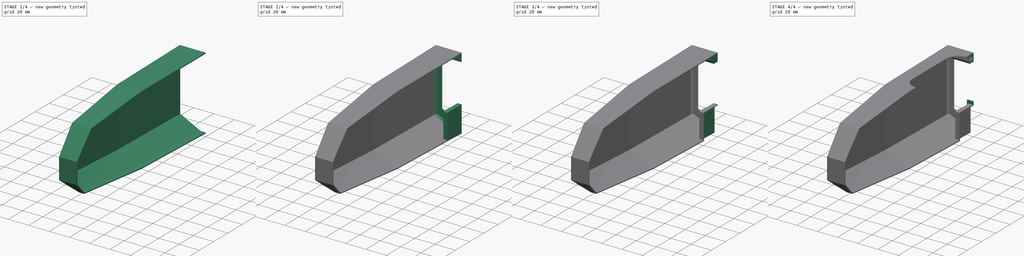
[diagram: build sequence overview — one tinted view per stage of 4, left to right]
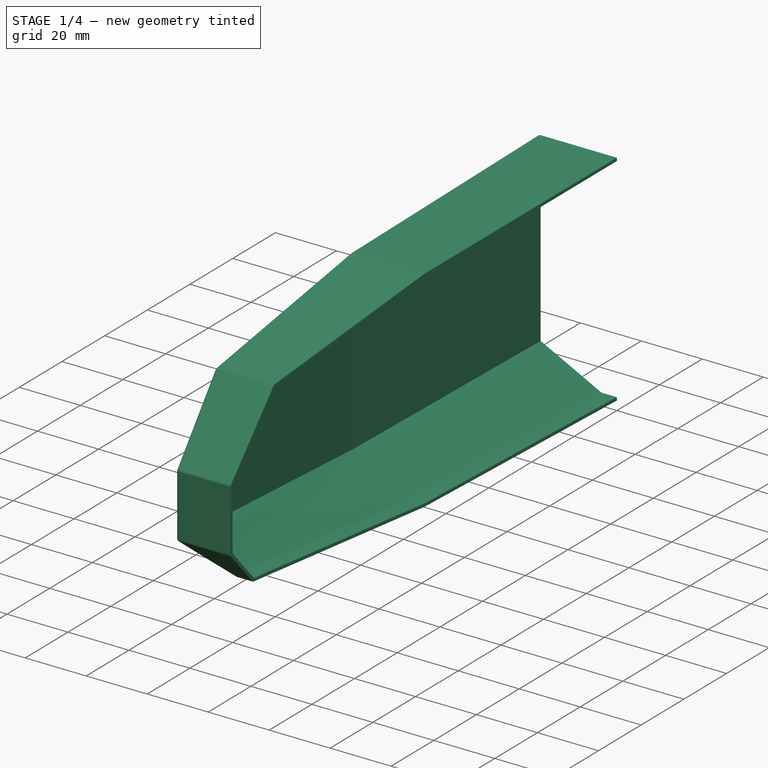
[diagram: stage 1 of 4 — iso view after this stage's code; geometry added in this stage tinted green]
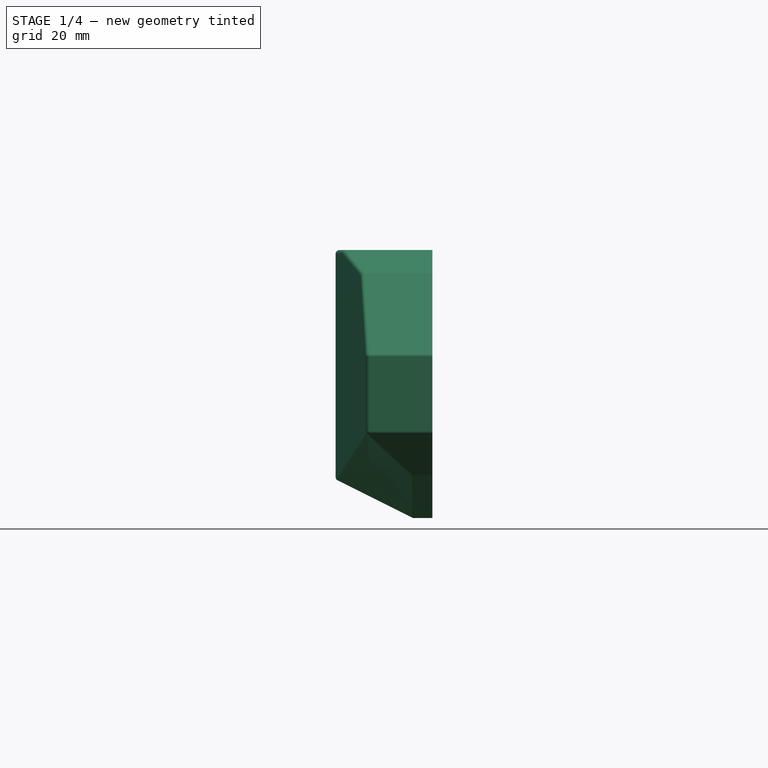
[diagram: stage 1 of 4 — front view after this stage's code; geometry added in this stage tinted green]
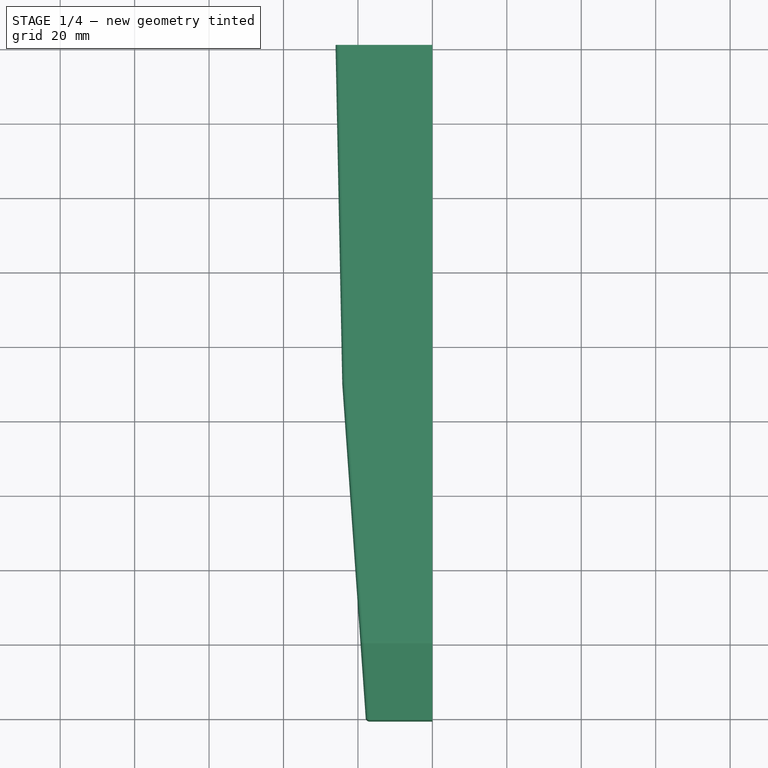
[diagram: stage 1 of 4 — top view after this stage's code; geometry added in this stage tinted green]
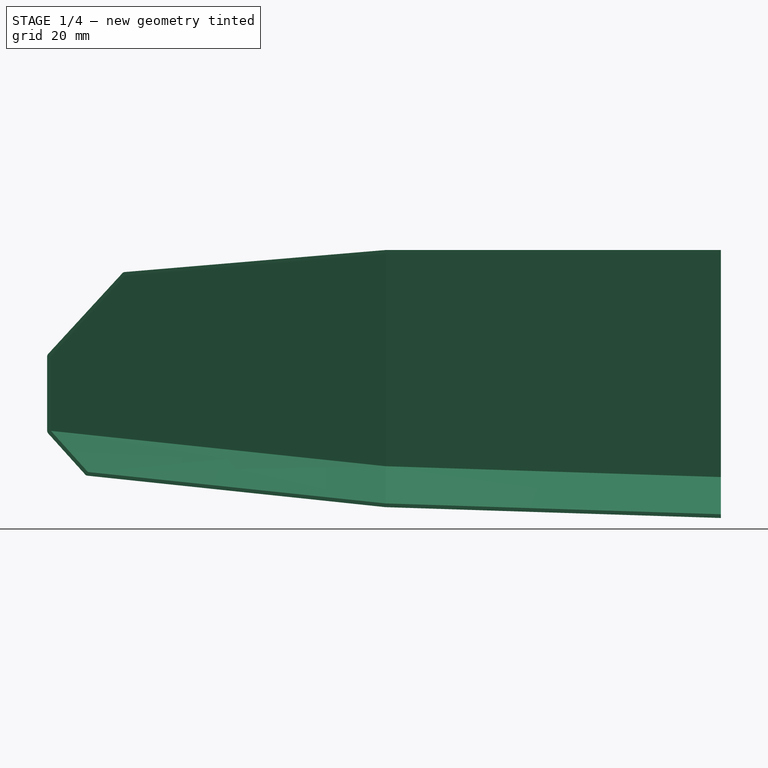
[diagram: stage 1 of 4 — right view after this stage's code; geometry added in this stage tinted green]
FCSTD DOCUMENT  (FreeCAD 0.18R4 (GitTag))
Label: o-cat
License: All rights reserved
LicenseURL: http://en.wikipedia.org/wiki/All_rights_reserved
objects: Sketcher::SketchObject×8, PartDesign::Pocket×4, PartDesign::Pad×4, Part::Feature×1, PartDesign::FeatureBase×1, PartDesign::Thickness×1, PartDesign::Chamfer×1, PartDesign::Fillet×1, PartDesign::Body×1
note: 30 computed .brp shape members not serialized (recipe doc carries the construction recipe); baked Part::Feature solids carry a one-line shape summary decoded from their .brp

FEATURE [Part::Feature] Part__Feature  label="Pocket001"
  shape: bbox 50 x 180 x 70 mm, 16 faces (baked)
FEATURE [PartDesign::FeatureBase] BaseFeature
  BaseFeature = -> Part__Feature
FEATURE [Sketcher::SketchObject] Sketch
  MapMode = 5
  Placement = pos=(0,-1.02e-14,0) rot=(0,0.707107,0.707107;3.14159rad)
  Support = -> [BaseFeature]
  sketch-geometry (4):
    g0: LineSegment StartX=-89.6004 StartY=41.4914 StartZ=0 EndX=0 EndY=41.4914 EndZ=0
    g1: LineSegment StartX=0 StartY=41.4914 StartZ=0 EndX=0 EndY=-95.8875 EndZ=0
    g2: LineSegment StartX=0 StartY=-95.8875 StartZ=0 EndX=-89.6004 EndY=-95.8875 EndZ=0
    g3: LineSegment StartX=-89.6004 StartY=-95.8875 StartZ=0 EndX=-89.6004 EndY=41.4914 EndZ=0
  constraints (9):
    c: Coincident(g0,g1)
    c: Coincident(g1,g2)
    c: Coincident(g2,g3)
    c: Coincident(g3,g0)
    c: Horizontal(g0)
    c: Horizontal(g2)
    c: Vertical(g1)
    c: Vertical(g3)
    c: PointOnObject(g1,g-2)
FEATURE [PartDesign::Pocket] Pocket
  BaseFeature = -> BaseFeature
  Length = 5
  Length2 = 100
  Profile = -> Sketch
  Type = 1
FEATURE [PartDesign::Thickness] Thickness
  Base = -> Pocket [Face5,Face10]
  BaseFeature = -> Pocket
  Join = 0
  Mode = 0
  Value = 1
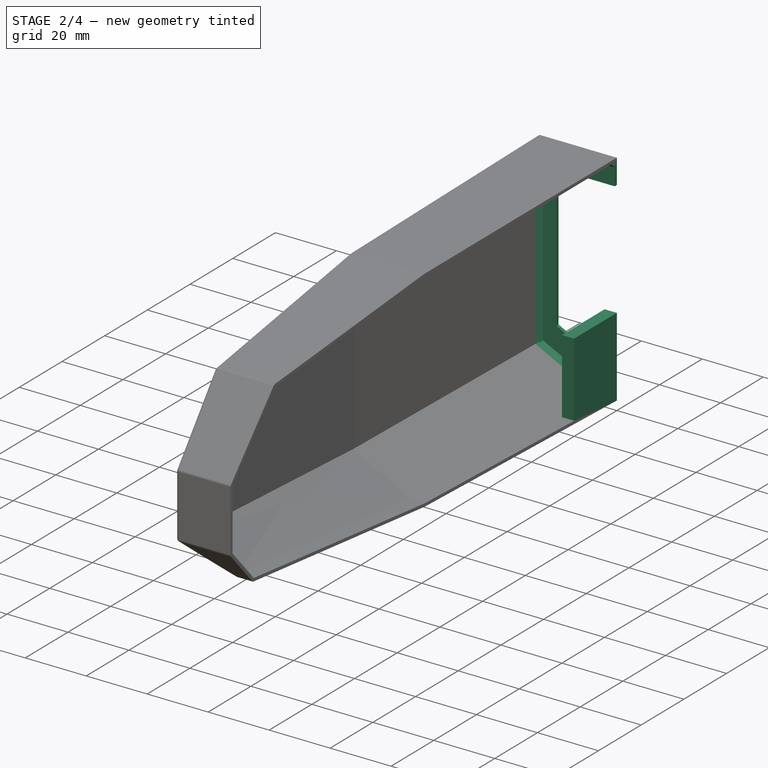
[diagram: stage 2 of 4 — iso view after this stage's code; geometry added in this stage tinted green]
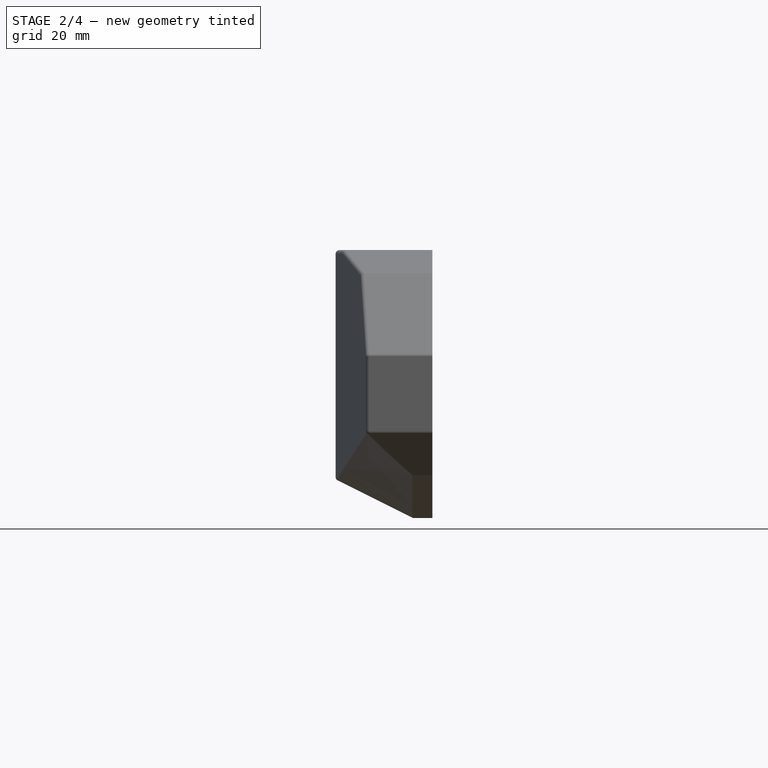
[diagram: stage 2 of 4 — front view after this stage's code; geometry added in this stage tinted green]
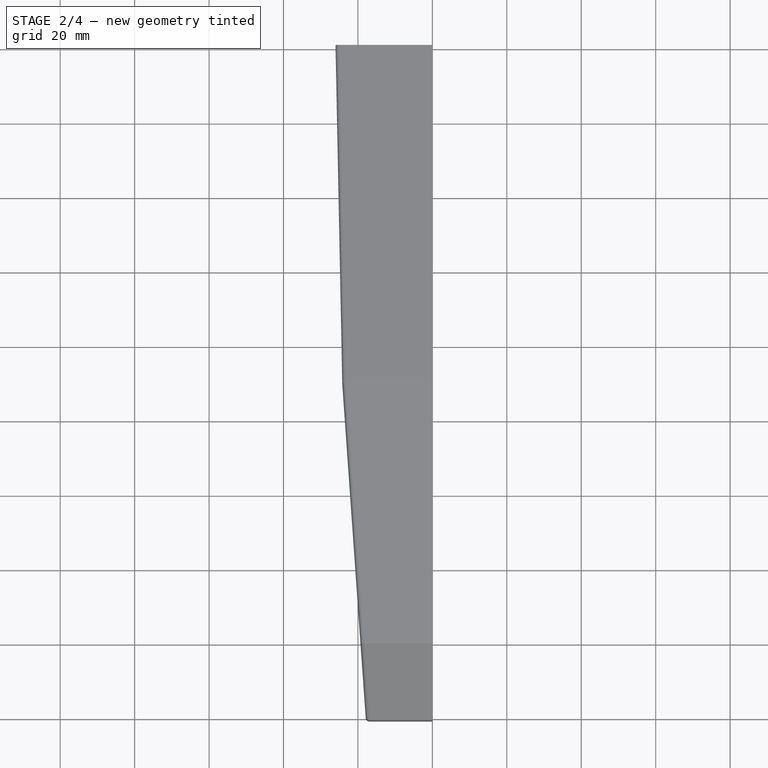
[diagram: stage 2 of 4 — top view after this stage's code; geometry added in this stage tinted green]
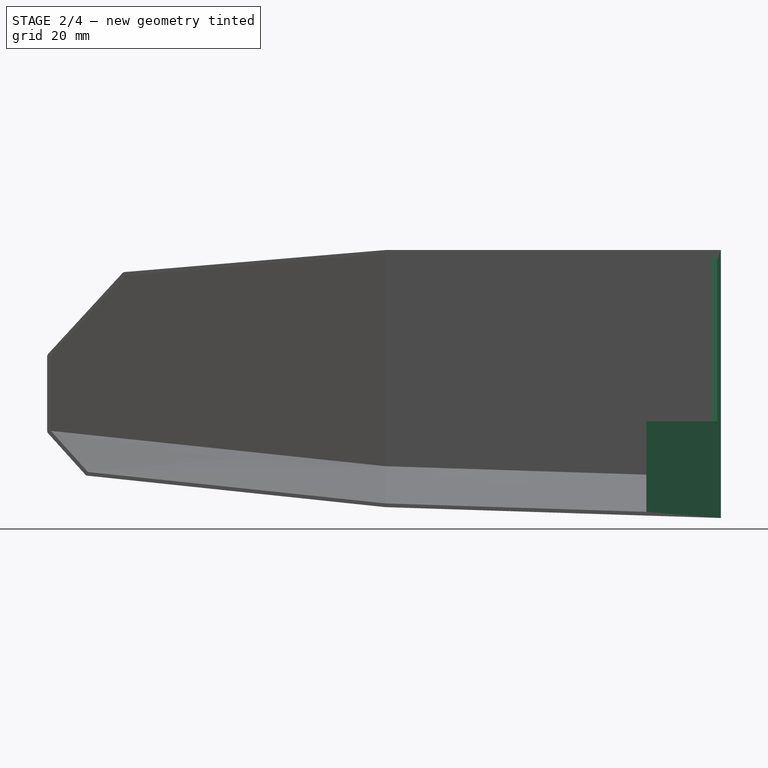
[diagram: stage 2 of 4 — right view after this stage's code; geometry added in this stage tinted green]
FEATURE [Sketcher::SketchObject] Sketch001
  ExternalGeometry = -> [Thickness]
  MapMode = 5
  Placement = pos=(0,-1.02e-14,0) rot=(0,0.707107,0.707107;3.14159rad)
  Support = -> [Thickness]
  sketch-geometry (9):
    g0: LineSegment StartX=0 StartY=0 StartZ=0 EndX=25 EndY=-1.92e-14 EndZ=0
    g1: LineSegment StartX=25 StartY=-1.92e-14 StartZ=0 EndX=25 EndY=-60 EndZ=0
    g2: LineSegment StartX=25 StartY=-60 StartZ=0 EndX=5 EndY=-70 EndZ=0
    g3: LineSegment StartX=5 StartY=-70 StartZ=0 EndX=0 EndY=-70 EndZ=0
    g4: LineSegment StartX=0 StartY=-70 StartZ=0 EndX=0 EndY=-63.4819 EndZ=0
    g5: LineSegment StartX=0 StartY=-63.4819 StartZ=0 EndX=19.1518 EndY=-53.507 EndZ=0
    g6: LineSegment StartX=19.1518 StartY=-53.507 StartZ=0 EndX=19.1518 EndY=-7.10165 EndZ=0
    g7: LineSegment StartX=19.1518 StartY=-7.10165 StartZ=0 EndX=0 EndY=-7.10165 EndZ=0
    g8: LineSegment StartX=0 StartY=-7.10165 StartZ=0 EndX=0 EndY=0 EndZ=0
  constraints (18):
    c: Coincident(g-1,g0)
    c: Coincident(g0,g-3)
    c: Coincident(g0,g1)
    c: Coincident(g1,g-4)
    c: Coincident(g1,g2)
    c: Coincident(g2,g-5)
    c: Coincident(g2,g3)
    c: Coincident(g3,g-5)
    c: Coincident(g3,g4)
    c: Vertical(g4)
    c: Coincident(g4,g5)
    c: Coincident(g5,g6)
    c: Vertical(g6)
    c: Coincident(g6,g7)
    c: PointOnObject(g7,g-2)
    c: Horizontal(g7)
    c: Coincident(g7,g8)
    c: Coincident(g8,g0)
FEATURE [PartDesign::Pad] Pad
  BaseFeature = -> Thickness
  Length = 1
  Length2 = 100
  Profile = -> Sketch001
  Refine = true
  Reversed = true
  Type = 0
FEATURE [PartDesign::Chamfer] Chamfer
  Base = -> Pad [Edge111,Edge113,Edge109,Edge110]
  BaseFeature = -> Pad
  Size = 1.5
FEATURE [Sketcher::SketchObject] Sketch002
  ExternalGeometry = -> [Chamfer]
  MapMode = 5
  Placement = pos=(2.6e-15,0,0) rot=(0.57735,0.57735,0.57735;2.0944rad)
  Support = -> [Chamfer]
  sketch-geometry (4):
    g0: LineSegment StartX=-20 StartY=-69.3538 StartZ=0 EndX=-4.26e-14 EndY=-70 EndZ=0
    g1: LineSegment StartX=-4.26e-14 StartY=-70 StartZ=0 EndX=-2.84e-14 EndY=-45 EndZ=0
    g2: LineSegment StartX=-20 StartY=-69.3538 StartZ=0 EndX=-20 EndY=-45 EndZ=0
    g3: LineSegment StartX=-20 StartY=-45 StartZ=0 EndX=-2.84e-14 EndY=-45 EndZ=0
  constraints (12):
    c: PointOnObject(g0,g-4)
    c: PointOnObject(g0,g-4)
    c: PointOnObject(g0,g-3)
    c: Coincident(g1,g0)
    c: PointOnObject(g1,g-3)
    c: DistanceY(g1,g1) = 25
    c: Coincident(g2,g0)
    c: Coincident(g3,g2)
    c: Coincident(g3,g1)
    c: Horizontal(g3)
    c: Vertical(g2)
    c: DistanceX(g3,g3) = 20
FEATURE [PartDesign::Pad] Pad001
  BaseFeature = -> Chamfer
  Length = 4
  Length2 = 100
  Profile = -> Sketch002
  Refine = true
  Reversed = true
  Type = 0
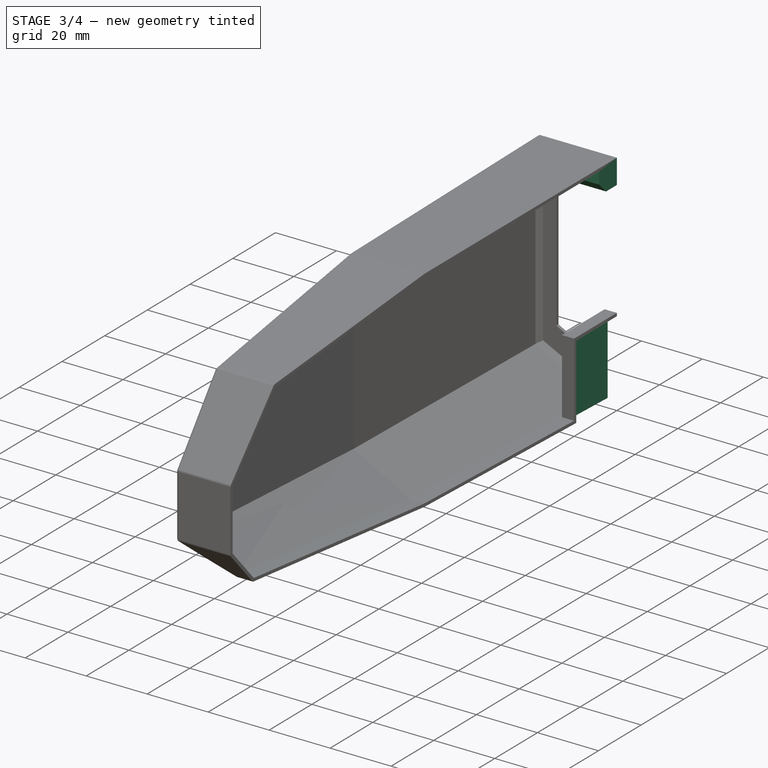
[diagram: stage 3 of 4 — iso view after this stage's code; geometry added in this stage tinted green]
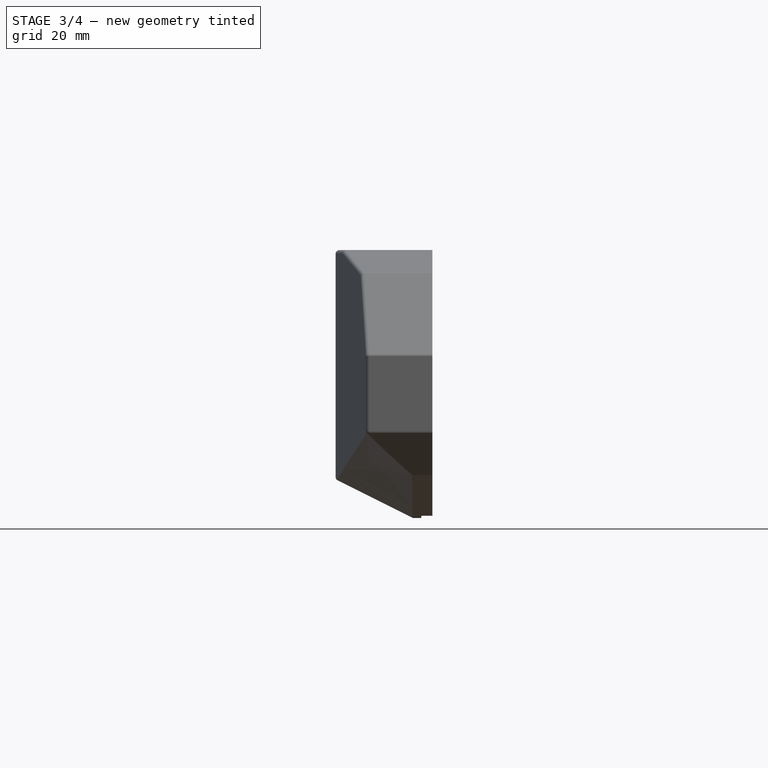
[diagram: stage 3 of 4 — front view after this stage's code; geometry added in this stage tinted green]
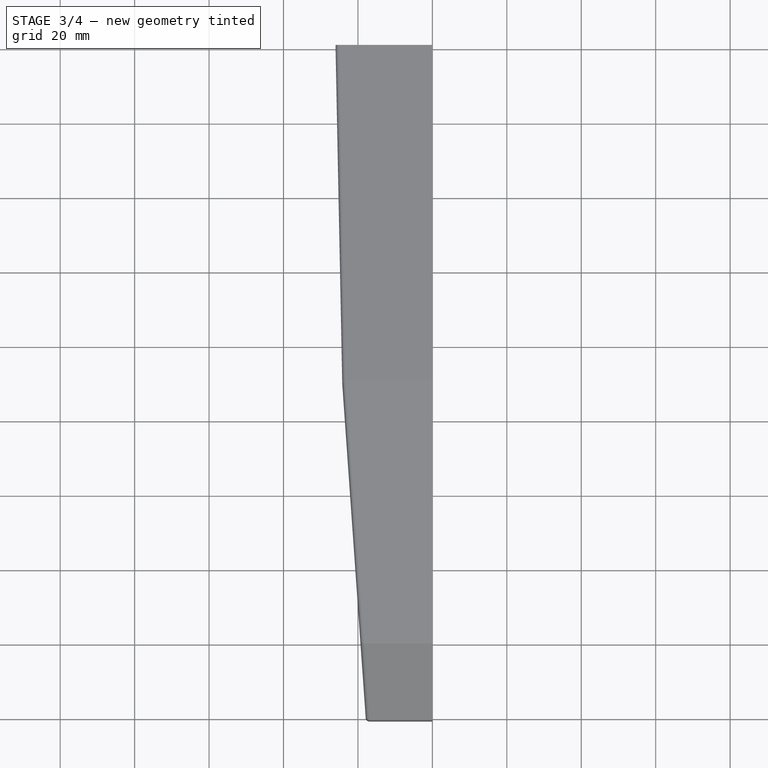
[diagram: stage 3 of 4 — top view after this stage's code; geometry added in this stage tinted green]
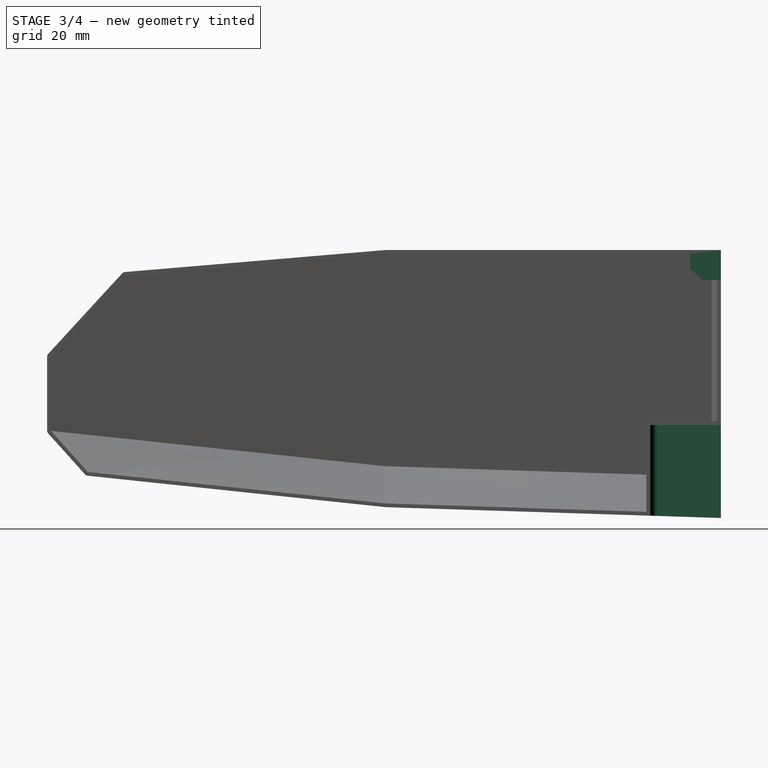
[diagram: stage 3 of 4 — right view after this stage's code; geometry added in this stage tinted green]
FEATURE [Sketcher::SketchObject] Sketch003
  ExternalGeometry = -> [Pad001]
  MapMode = 5
  Placement = pos=(1.9e-15,0,0) rot=(0.57735,0.57735,0.57735;2.0944rad)
  Support = -> [Pad001]
  sketch-geometry (4):
    g0: LineSegment StartX=-3.06e-14 StartY=-46.0005 StartZ=0 EndX=-19 EndY=-46.0005 EndZ=0
    g1: LineSegment StartX=-19 StartY=-46.0005 StartZ=0 EndX=-19 EndY=-70.3866 EndZ=0
    g2: LineSegment StartX=-19 StartY=-70.3866 StartZ=0 EndX=-4.26e-14 EndY=-71.0005 EndZ=0
    g3: LineSegment StartX=-4.26e-14 StartY=-71.0005 StartZ=0 EndX=-3.06e-14 EndY=-46.0005 EndZ=0
  constraints (11):
    c: PointOnObject(g0,g-3)
    c: Horizontal(g0)
    c: Coincident(g0,g1)
    c: Vertical(g1)
    c: Coincident(g1,g2)
    c: Coincident(g2,g-4)
    c: Coincident(g2,g3)
    c: Coincident(g3,g0)
    c: DistanceY(g3,g3) = 25
    c: DistanceX(g0,g0) = 19
    c: PointOnObject(g1,g-4)
FEATURE [PartDesign::Pocket] Pocket001  label="Pocket002"
  BaseFeature = -> Pad001
  Length = 3
  Length2 = 100
  Profile = -> Sketch003
  Refine = true
  Type = 0
FEATURE [PartDesign::Fillet] Fillet
  Base = -> Pocket001 [Edge60]
  BaseFeature = -> Pocket001
  Radius = 2
FEATURE [Sketcher::SketchObject] Sketch004
  ExternalGeometry = -> [Fillet]
  MapMode = 5
  Placement = pos=(1.9e-15,0,0) rot=(0.57735,0.57735,0.57735;2.0944rad)
  Support = -> [Fillet]
  sketch-geometry (5):
    g0: LineSegment StartX=-8.26669 StartY=0 StartZ=0 EndX=-1.42e-14 EndY=0 EndZ=0
    g1: LineSegment StartX=-1.34e-14 StartY=0 StartZ=0 EndX=-1.34e-14 EndY=-7.10165 EndZ=0
    g2: LineSegment StartX=-8.26669 StartY=-3.85007 StartZ=0 EndX=-8.26669 EndY=0 EndZ=0
    g3: LineSegment StartX=-8.26669 StartY=-3.85007 StartZ=0 EndX=-5.01511 EndY=-7.10165 EndZ=0
    g4: LineSegment StartX=-5.01511 StartY=-7.10165 StartZ=0 EndX=-1.33e-14 EndY=-7.10165 EndZ=0
  constraints (12):
    c: Coincident(g0,g1)
    c: Coincident(g2,g0)
    c: Horizontal(g0)
    c: Vertical(g1)
    c: Vertical(g2)
    c: PointOnObject(g0,g-1)
    c: Horizontal(g4)
    c: Coincident(g4,g3)
    c: Coincident(g3,g2)
    c: Coincident(g4,g1)
    c: Coincident(g-3,g1)
    c: Angle(g4,g3) = 2.35619
FEATURE [PartDesign::Pad] Pad002
  BaseFeature = -> Fillet
  Length = 10
  Length2 = 100
  Profile = -> Sketch004
  Refine = true
  Reversed = true
  Type = 2
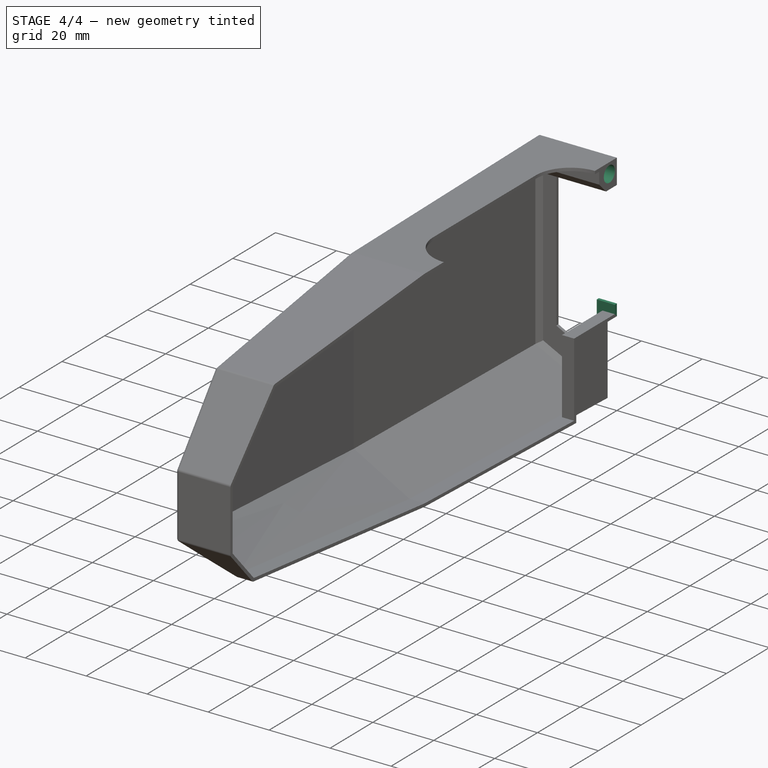
[diagram: stage 4 of 4 — iso view after this stage's code; geometry added in this stage tinted green]
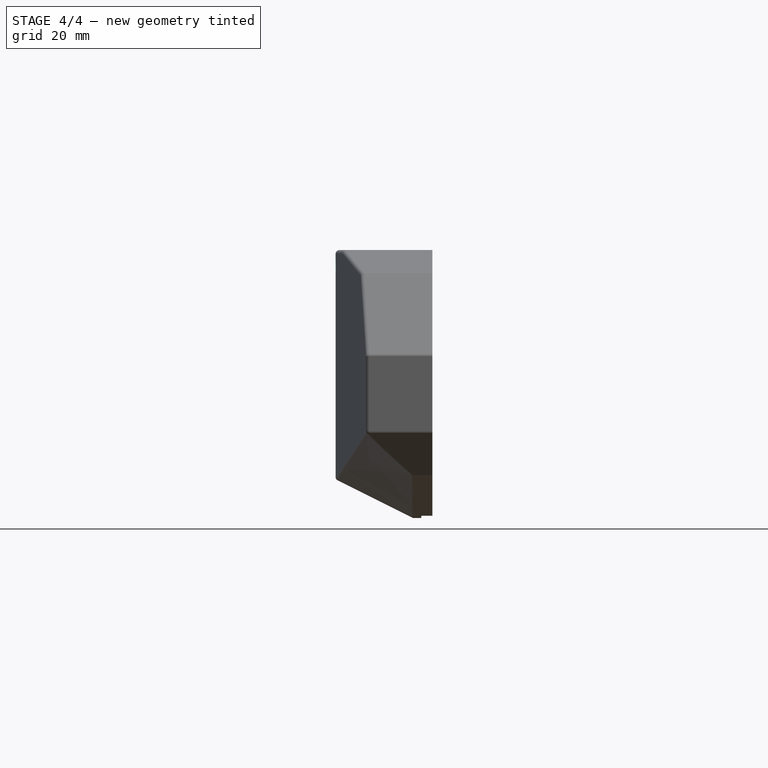
[diagram: stage 4 of 4 — front view after this stage's code; geometry added in this stage tinted green]
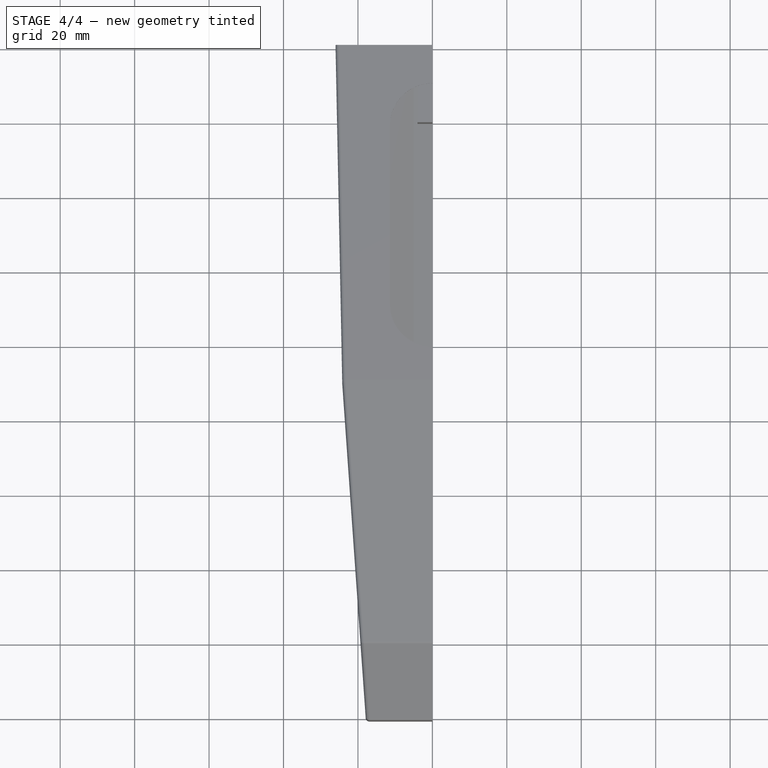
[diagram: stage 4 of 4 — top view after this stage's code; geometry added in this stage tinted green]
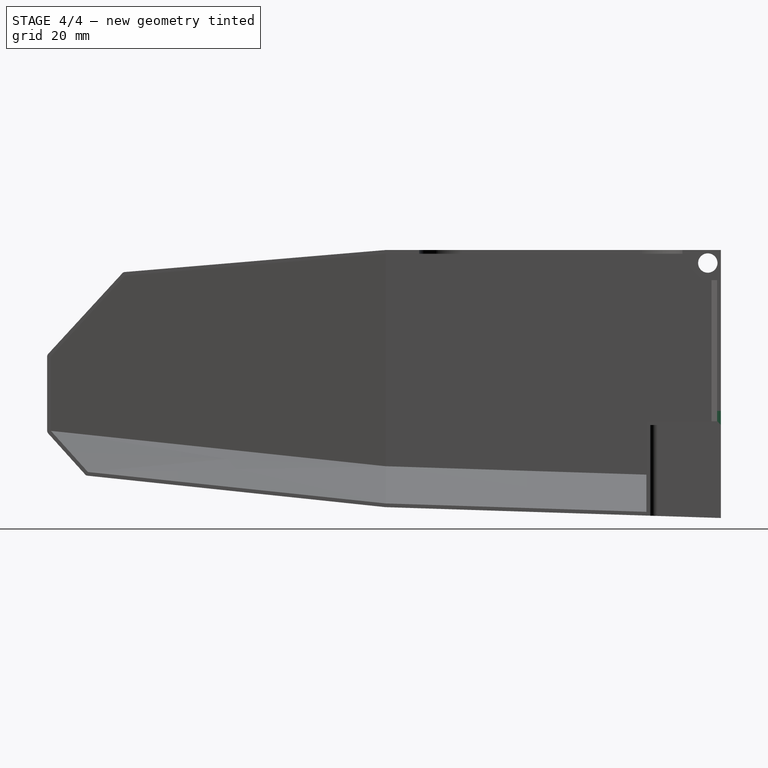
[diagram: stage 4 of 4 — right view after this stage's code; geometry added in this stage tinted green]
FEATURE [Sketcher::SketchObject] Sketch005
  MapMode = 5
  Placement = pos=(1.6e-15,0,0) rot=(0.57735,0.57735,0.57735;2.0944rad)
  Support = -> [Pad002]
  sketch-geometry (1):
    g0: Circle CenterX=-3.5 CenterY=-2.5 CenterZ=0 NormalX=0 NormalY=0 NormalZ=1 AngleXU=0 Radius=2.6
  constraints (3):
    c: Radius(g0) = 2.6
    c: DistanceX(g0,g-1) = 3.5
    c: DistanceY(g0,g-1) = 2.5
FEATURE [PartDesign::Pocket] Pocket002  label="Pocket003"
  BaseFeature = -> Pad002
  Length = 5
  Length2 = 100
  Profile = -> Sketch005
  Type = 1
FEATURE [Sketcher::SketchObject] Sketch006
  ExternalGeometry = -> [Pocket002]
  MapMode = 5
  Placement = pos=(0,-1.06e-14,0) rot=(0,0.707107,0.707107;3.14159rad)
  Support = -> [Pocket002]
  sketch-geometry (6):
    g0: LineSegment StartX=4.9e-15 StartY=-45 StartZ=0 EndX=0 EndY=-42.2141 EndZ=0
    g1: LineSegment StartX=0 StartY=-42.2141 StartZ=0 EndX=5.89244 EndY=-42.2141 EndZ=0
    g2: LineSegment StartX=5.89244 StartY=-42.2141 StartZ=0 EndX=5.89244 EndY=-60.4129 EndZ=0
    g3: LineSegment StartX=5.89244 StartY=-60.4129 StartZ=0 EndX=4 EndY=-61.3986 EndZ=0
    g4: LineSegment StartX=4 StartY=-61.3986 StartZ=0 EndX=4 EndY=-45 EndZ=0
    g5: LineSegment StartX=4 StartY=-45 StartZ=0 EndX=4.9e-15 EndY=-45 EndZ=0
  constraints (13):
    c: Coincident(g-3,g0)
    c: PointOnObject(g0,g-2)
    c: Coincident(g0,g1)
    c: Horizontal(g1)
    c: Coincident(g1,g2)
    c: PointOnObject(g2,g-5)
    c: Vertical(g2)
    c: Coincident(g2,g3)
    c: Coincident(g3,g-5)
    c: Coincident(g3,g4)
    c: Coincident(g4,g-4)
    c: Coincident(g4,g5)
    c: Coincident(g5,g0)
FEATURE [PartDesign::Pad] Pad003
  BaseFeature = -> Pocket002
  Length = 1
  Length2 = 100
  Profile = -> Sketch006
  Refine = true
  Reversed = true
  Type = 0
FEATURE [Sketcher::SketchObject] Sketch007
  MapMode = 5
  Support = -> [XY_Plane]
  sketch-geometry (4):
    g0: ArcOfCircle CenterX=0 CenterY=-21.6889 CenterZ=0 NormalX=0 NormalY=0 NormalZ=1 AngleXU=0 Radius=11.4046 StartAngle=1e-16 EndAngle=3.14159
    g1: ArcOfCircle CenterX=6e-16 CenterY=-69.6467 CenterZ=0 NormalX=0 NormalY=0 NormalZ=1 AngleXU=0 Radius=11.4046 StartAngle=3.14159 EndAngle=6.28319
    g2: LineSegment StartX=-11.4046 StartY=-21.6889 StartZ=0 EndX=-11.4046 EndY=-69.6467 EndZ=0
    g3: LineSegment StartX=11.4046 StartY=-21.6889 StartZ=0 EndX=11.4046 EndY=-69.6467 EndZ=0
  constraints (7):
    c: Tangent(g0,g3) = 1.5708
    c: Tangent(g0,g2) = -1.5708
    c: Tangent(g2,g1) = -1.5708
    c: Tangent(g3,g1) = 1.5708
    c: Vertical(g2)
    c: Equal(g0,g1)
    c: PointOnObject(g0,g-2)
FEATURE [PartDesign::Pocket] Pocket003  label="Pocket004"
  BaseFeature = -> Pad003
  Length = 5
  Length2 = 100
  Profile = -> Sketch007
  Reversed = true
  Type = 0
FEATURE [PartDesign::Body] Body
  BaseFeature = -> Part__Feature
  Group = -> [BaseFeature,Sketch,Pocket,Thickness,Sketch001,Pad,Chamfer,Sketch002,Pad001,Sketch003,Pocket001,Fillet,Sketch004,Pad002,Sketch005,Pocket002,Sketch006,Pad003,Sketch007,Pocket003]
  Origin = -> Origin
  Tip = -> Pocket003
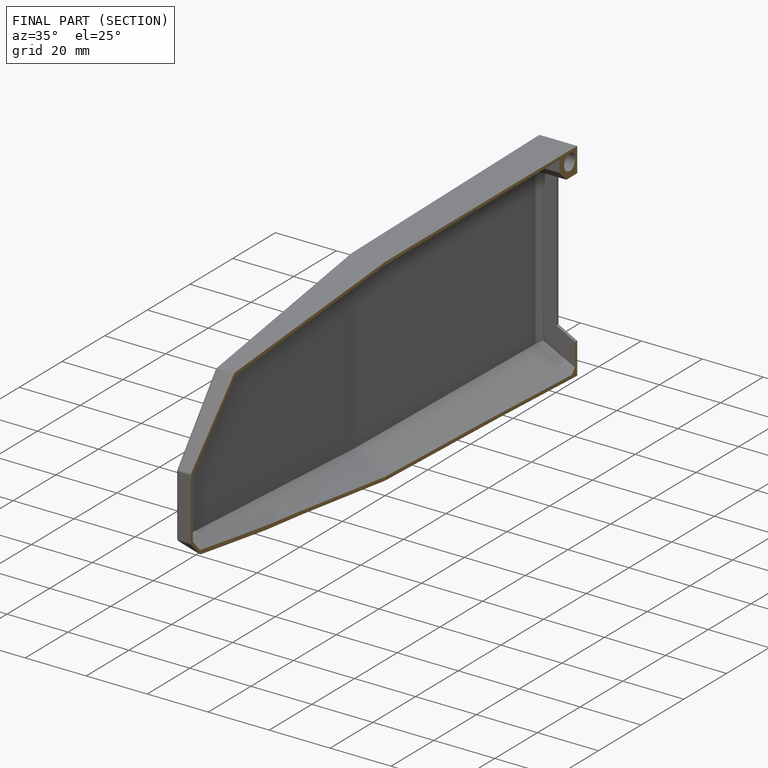
[diagram: finished part — half-section view (interior)]
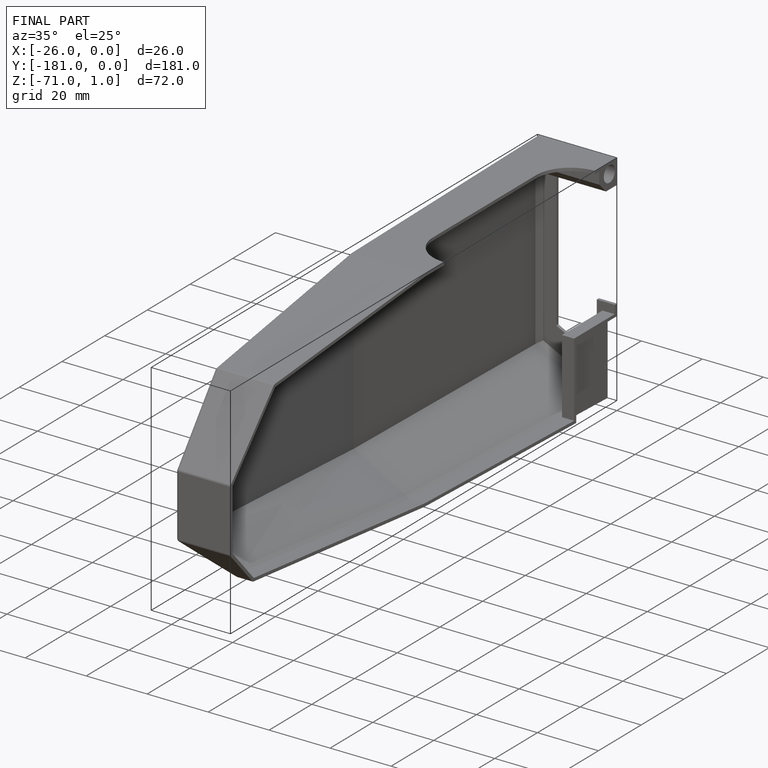
[diagram: finished part — iso view with bounding-box wireframe]
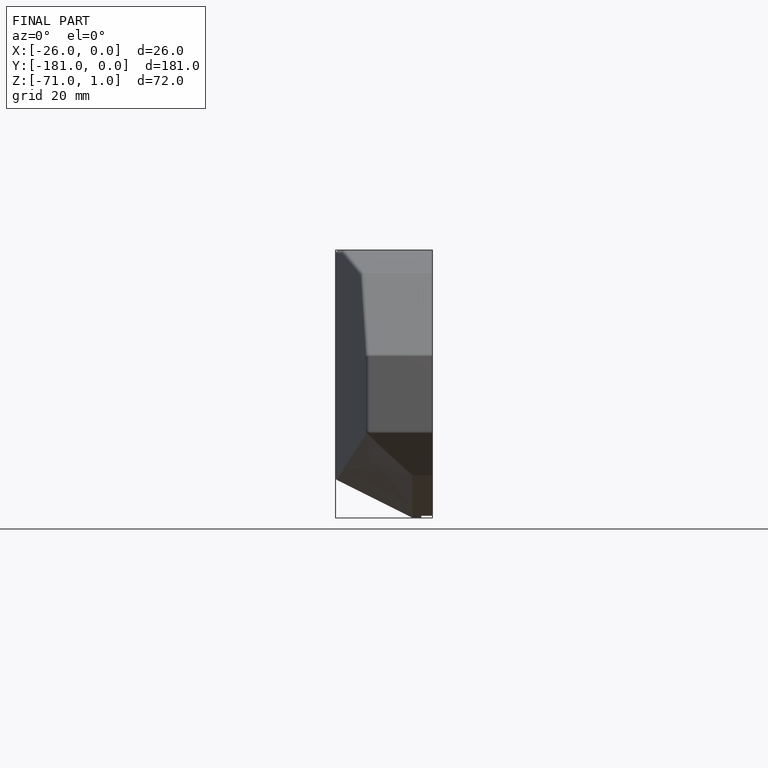
[diagram: finished part — front view with bounding-box wireframe]
